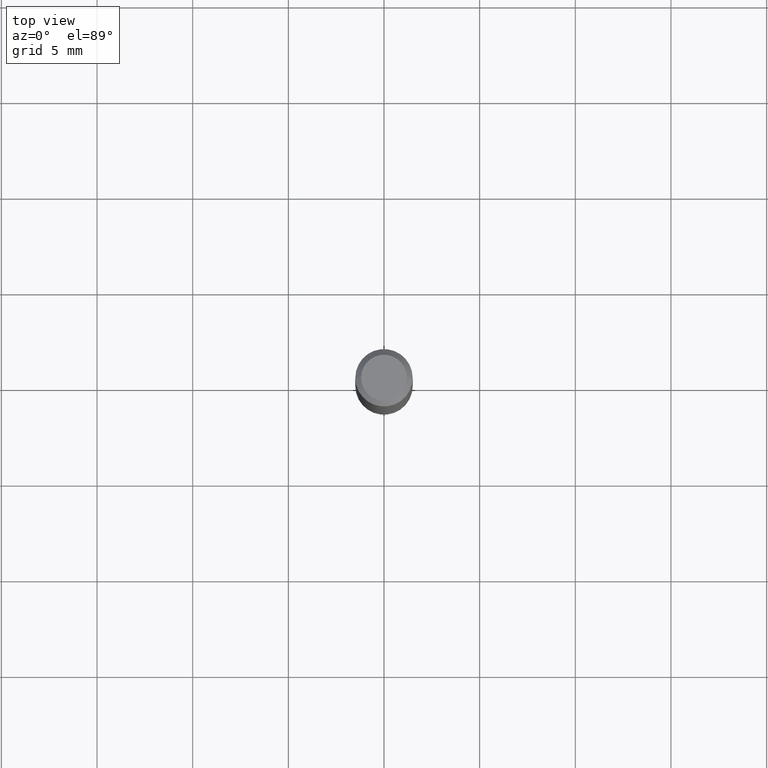
[diagram: clean part render]
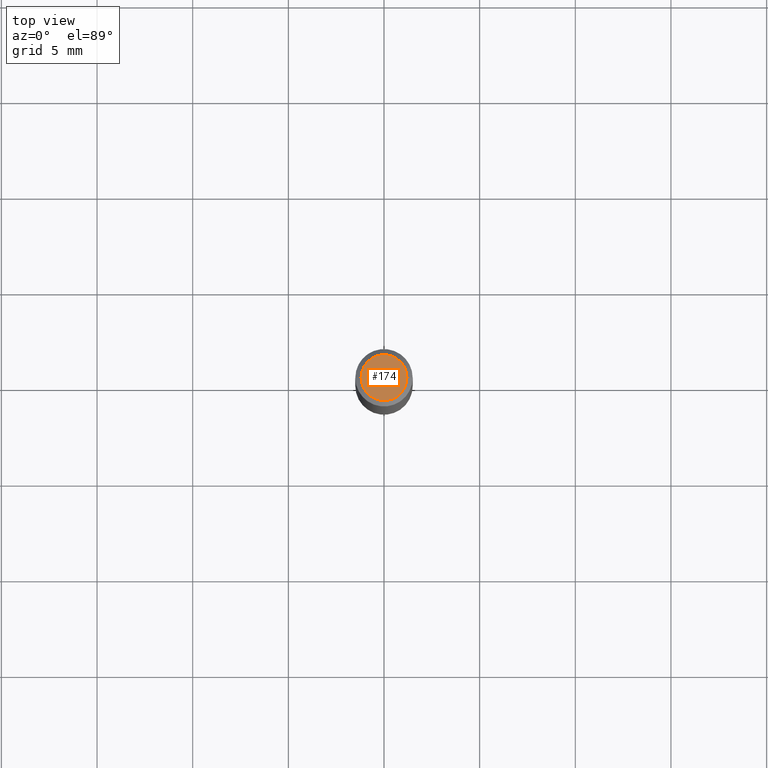
[diagram: same view with one face highlighted and labeled with its STEP entity id]
A machine part, top view. The second image highlights one B-rep face of the part: STEP entity #174.
In plain terms, the highlighted planar face has unit normal (0, -0, -1).
Its self-contained STEP definition (entity closure, byte-faithful):
#18 = DIRECTION ( 'NONE',  ( 1.000000000000000000, -6.982962677686266711E-15, 4.876185090822587894E-29 ) ) ;
#35 = ORIENTED_EDGE ( 'NONE', *, *, #167, .T. ) ;
#50 = DIRECTION ( 'NONE',  ( 2.438088387897960049E-29, -3.491481338843145188E-15, -1.000000000000000000 ) ) ;
#55 = CARTESIAN_POINT ( 'NONE',  ( 8.265746106709734507E-48, -1.180129479067563789E-33, -3.380025165646692144E-19 ) ) ;
#83 = CIRCLE ( 'NONE', #164, 0.04724000000000000421 ) ;
#90 = DIRECTION ( 'NONE',  ( -1.000000000000000000, 6.982962677686265922E-15, -4.876176775795935793E-29 ) ) ;
#102 = ORIENTED_EDGE ( 'NONE', *, *, #263, .T. ) ;
#164 = AXIS2_PLACEMENT_3D ( 'NONE', #55, #209, #18 ) ;
#167 = EDGE_CURVE ( 'NONE', #447, #482, #467, .T. ) ;
#174 = ADVANCED_FACE ( 'NONE', ( #474 ), #360, .F. ) ;
#209 = DIRECTION ( 'NONE',  ( -2.445468806185136597E-29, 3.491481338843145583E-15, 1.000000000000000000 ) ) ;
#236 = CARTESIAN_POINT ( 'NONE',  ( -0.04724000000000000421, 3.504923541997677355E-16, -3.380025165670481712E-19 ) ) ;
#263 = EDGE_CURVE ( 'NONE', #482, #447, #83, .T. ) ;
#291 = CARTESIAN_POINT ( 'NONE',  ( 8.265746106709734507E-48, -1.180129479067563789E-33, -3.380025165646692144E-19 ) ) ;
#334 = AXIS2_PLACEMENT_3D ( 'NONE', #291, #399, #398 ) ;
#360 = PLANE ( 'NONE',  #435 ) ;
#376 = CARTESIAN_POINT ( 'NONE',  ( 0.04724000000000000421, -3.852183633974369345E-16, -3.380025165621689721E-19 ) ) ;
#398 = DIRECTION ( 'NONE',  ( 1.000000000000000000, -6.982962677686266711E-15, 4.876185090822587894E-29 ) ) ;
#399 = DIRECTION ( 'NONE',  ( -2.445468806185136597E-29, 3.491481338843145583E-15, 1.000000000000000000 ) ) ;
#411 = EDGE_LOOP ( 'NONE', ( #102, #35 ) ) ;
#435 = AXIS2_PLACEMENT_3D ( 'NONE', #439, #50, #90 ) ;
#439 = CARTESIAN_POINT ( 'NONE',  ( 4.132873053354867254E-48, -5.900647395337818946E-34, -1.690012582823346072E-19 ) ) ;
#447 = VERTEX_POINT ( 'NONE', #376 ) ;
#467 = CIRCLE ( 'NONE', #334, 0.04724000000000000421 ) ;
#474 = FACE_OUTER_BOUND ( 'NONE', #411, .T. ) ;
#482 = VERTEX_POINT ( 'NONE', #236 ) ;